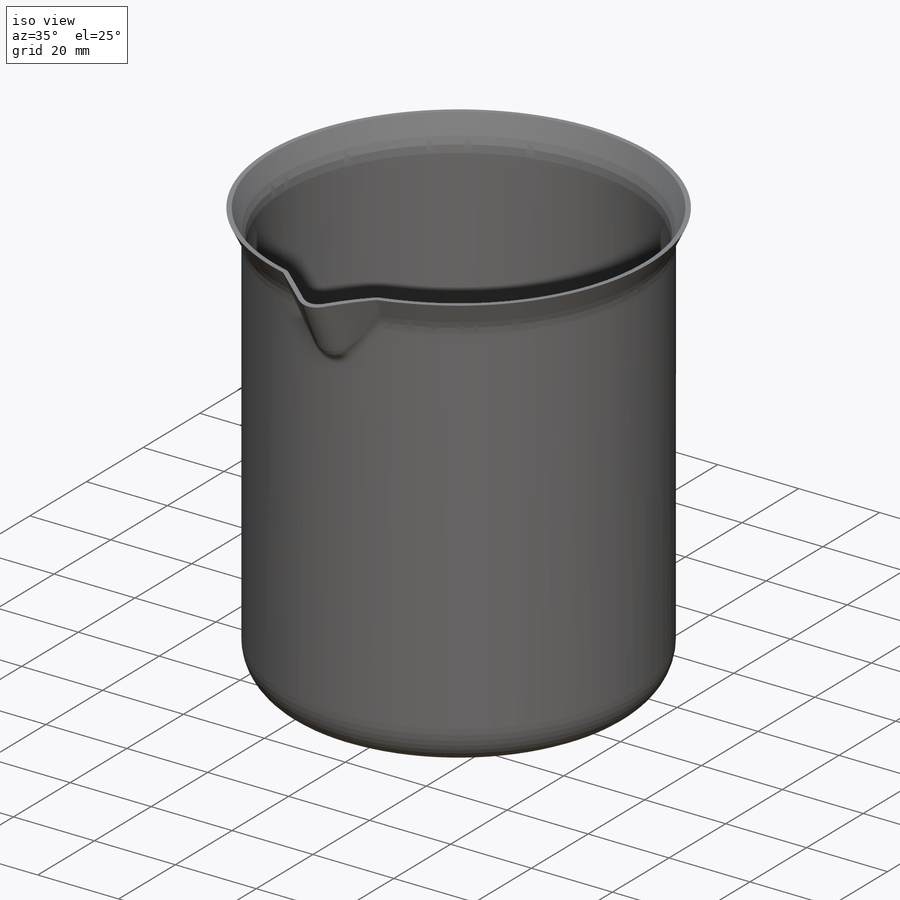
[diagram: iso view]
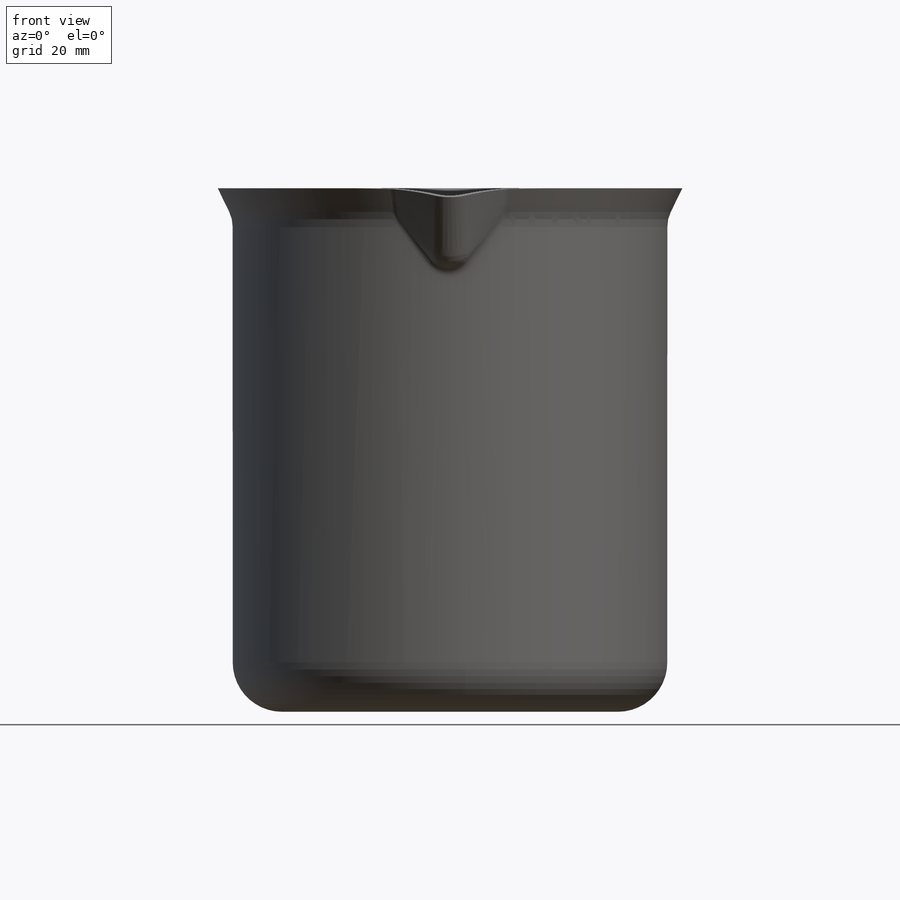
[diagram: front view]
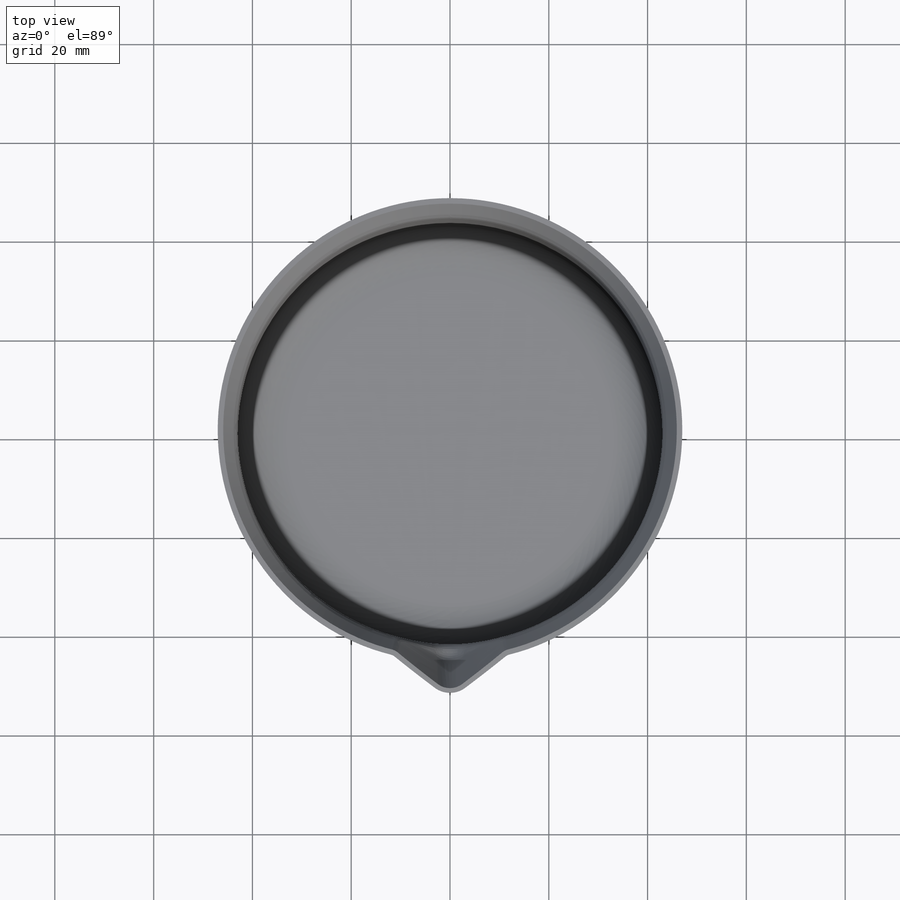
[diagram: top view]
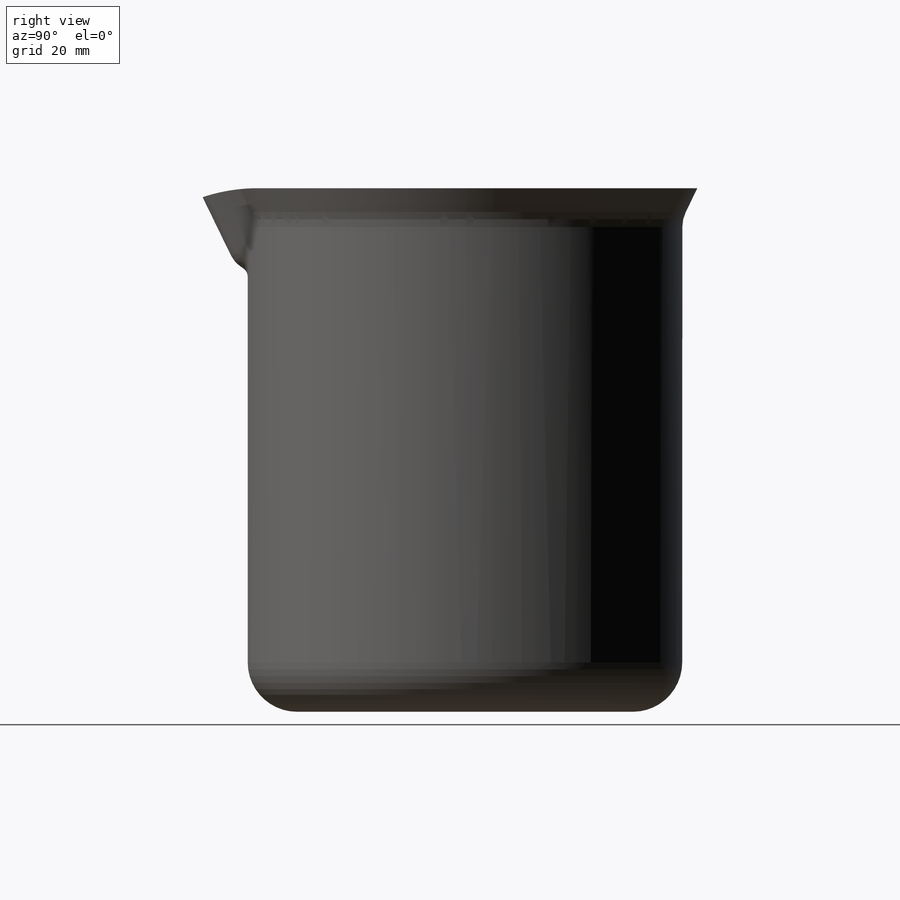
[diagram: right view]
SOLIDWORKS PART (.sldprt)
format: sldprt  version: not decoded by parser v0  size: 610,304 bytes
history: native  units: mm
features: sketch x6, surface_op x4, fillet x3, delete_body x2, material x1, mirror x1, extrude x1, boolean_combine x1 (+15 scaffold rows collapsed)
feature tree (34):
  scaffold x15  (default folders/planes/origin — collapsed)
  material  "Material <not specified>"
  sketch  "Sketch1"  dims[c1.D1=9.0mm c1.D2=34.0mm c2.D1=180.0deg c3.D1=90.0mm c3.D2=26.0deg]
  sketch  "Sketch2"  dims[c1.D1=~13.973278mm c2.D1=41.0deg c2.D2=13.0mm c2.D3=15.0mm c2.D4=93.0mm]
  surface_op  "Surface-Extrude1"
  delete_body  "Body-Delete1"
  fillet  "Fillet1"  Radius=8mm
  sketch  "Sketch4"  dims[c1.D3=5.0mm c1.D1=~22.704575mm c2.D1=25.0deg c2.D2=55.0mm]
  sketch  "3DSketch1"
  surface_op  "Surface-Knit2"
  mirror  "Mirror1"
  surface_op  "Surface-Knit3"
  fillet  "Fillet2"  Radius=4mm
  fillet  "Fillet3"  Radius=3mm
  surface_op  "Surface-Knit4"
  sketch  "Sketch5"  dims[c1.D1=35.0mm c1.D2=50.0mm c1.D3=92.0mm c1.D4=96.0mm c1.D5=91.0mm c2.D1=140.0mm]
  delete_body  "Body-Delete3"
  sketch  "Sketch6"
  extrude  "Boss-Extrude1"  Depth=120mm
  boolean_combine  "Combine1"
decode coverage: 8 of 18 modeling features carry decoded parameters
note: ~ marks probable driven/reference dimensions
note: suppression state not decoded; provenance and decode notes live in map.json
